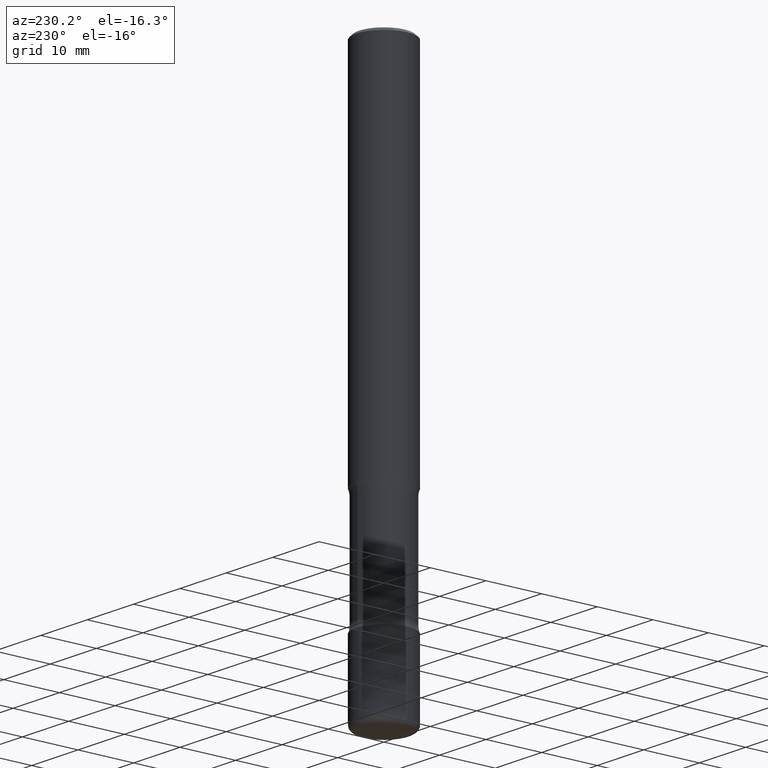
[diagram: clean part render]
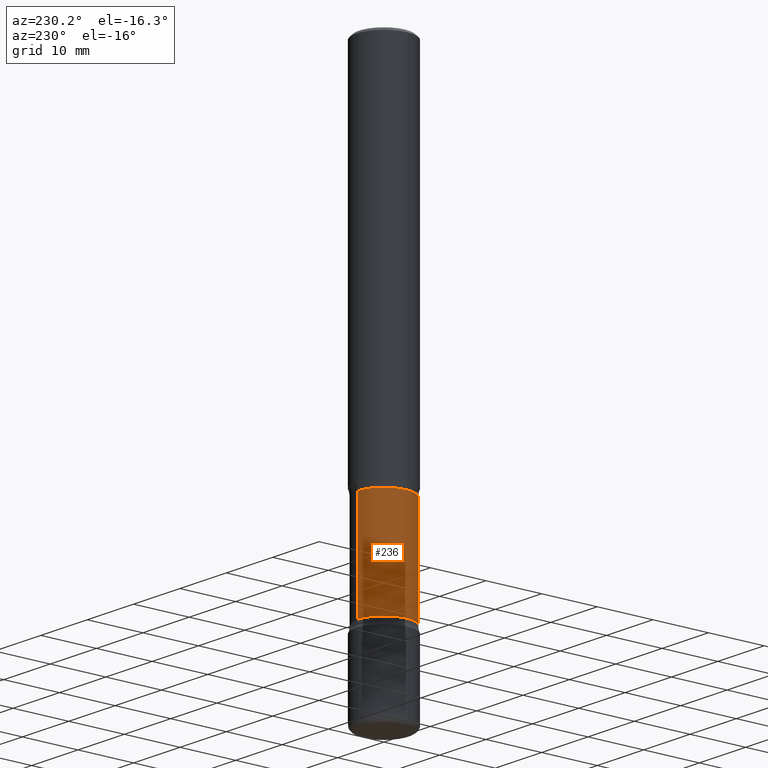
[diagram: same view with one face highlighted and labeled with its STEP entity id]
A machine part, auxiliary view. The second image highlights one B-rep face of the part: STEP entity #236.
In plain terms, the highlighted cylindrical surface (edge-blend (fillet) strip) has radius 4.7409 mm, axis along (0, -0, -1).
Its self-contained STEP definition (entity closure, byte-faithful):
#4 = VECTOR ( 'NONE', #336, 39.37007874015748143 ) ;
#34 = CARTESIAN_POINT ( 'NONE',  ( -1.315500491072630234E-15, -0.1866500000000093362, -2.608456647682591889 ) ) ;
#36 = EDGE_LOOP ( 'NONE', ( #427, #380, #44, #461 ) ) ;
#39 = AXIS2_PLACEMENT_3D ( 'NONE', #82, #554, #176 ) ;
#44 = ORIENTED_EDGE ( 'NONE', *, *, #500, .T. ) ;
#62 = DIRECTION ( 'NONE',  ( 6.982962677686266711E-15, 1.000000000000000000, -2.927241354046892699E-15 ) ) ;
#82 = CARTESIAN_POINT ( 'NONE',  ( 8.151697017269320442E-29, -1.165912942494680306E-14, -3.336343352317407973 ) ) ;
#136 = CARTESIAN_POINT ( 'NONE',  ( 1.303369983790204808E-15, 0.1866499999999908233, -2.608456647682592777 ) ) ;
#171 = CARTESIAN_POINT ( 'NONE',  ( 1.303369983790238926E-15, 0.1866499999999864101, -3.937000000000000721 ) ) ;
#176 = DIRECTION ( 'NONE',  ( 6.982962677686266711E-15, 1.000000000000000000, -2.927241354046893093E-15 ) ) ;
#178 = CARTESIAN_POINT ( 'NONE',  ( 1.303369983790223149E-15, 0.1866499999999883530, -3.336343352317408861 ) ) ;
#182 = VERTEX_POINT ( 'NONE', #178 ) ;
#200 = CARTESIAN_POINT ( 'NONE',  ( -1.315500491072608935E-15, -0.1866500000000116399, -3.336343352317407529 ) ) ;
#221 = VECTOR ( 'NONE', #558, 39.37007874015748143 ) ;
#229 = CYLINDRICAL_SURFACE ( 'NONE', #254, 0.1866500000000000381 ) ;
#236 = ADVANCED_FACE ( 'NONE', ( #270 ), #229, .T. ) ;
#254 = AXIS2_PLACEMENT_3D ( 'NONE', #475, #362, #62 ) ;
#268 = EDGE_CURVE ( 'NONE', #507, #543, #473, .T. ) ;
#270 = FACE_OUTER_BOUND ( 'NONE', #36, .T. ) ;
#289 = AXIS2_PLACEMENT_3D ( 'NONE', #443, #408, #290 ) ;
#290 = DIRECTION ( 'NONE',  ( 6.982962677686266711E-15, 1.000000000000000000, -2.927241354046892304E-15 ) ) ;
#326 = CARTESIAN_POINT ( 'NONE',  ( -1.280511951283959495E-15, -0.1866500000000136661, -3.936999999999999389 ) ) ;
#336 = DIRECTION ( 'NONE',  ( 2.591588243807108620E-29, -3.282229987566573640E-15, -1.000000000000000000 ) ) ;
#362 = DIRECTION ( 'NONE',  ( 2.591588243807108620E-29, -3.282229987566573640E-15, -1.000000000000000000 ) ) ;
#363 = CIRCLE ( 'NONE', #39, 0.1866500000000000103 ) ;
#368 = LINE ( 'NONE', #326, #221 ) ;
#380 = ORIENTED_EDGE ( 'NONE', *, *, #268, .T. ) ;
#408 = DIRECTION ( 'NONE',  ( 2.591588243807108620E-29, -3.282229987566573640E-15, -1.000000000000000000 ) ) ;
#423 = LINE ( 'NONE', #171, #4 ) ;
#427 = ORIENTED_EDGE ( 'NONE', *, *, #463, .F. ) ;
#443 = CARTESIAN_POINT ( 'NONE',  ( 6.265314390714234203E-29, -9.270037855443396476E-15, -2.608456647682592333 ) ) ;
#456 = VERTEX_POINT ( 'NONE', #200 ) ;
#461 = ORIENTED_EDGE ( 'NONE', *, *, #540, .F. ) ;
#463 = EDGE_CURVE ( 'NONE', #507, #456, #368, .T. ) ;
#473 = CIRCLE ( 'NONE', #289, 0.1866500000000000659 ) ;
#475 = CARTESIAN_POINT ( 'NONE',  ( 9.708351723968114409E-29, -1.363062268620181866E-14, -3.937000000000000277 ) ) ;
#500 = EDGE_CURVE ( 'NONE', #543, #182, #423, .T. ) ;
#507 = VERTEX_POINT ( 'NONE', #34 ) ;
#540 = EDGE_CURVE ( 'NONE', #456, #182, #363, .T. ) ;
#543 = VERTEX_POINT ( 'NONE', #136 ) ;
#554 = DIRECTION ( 'NONE',  ( 2.591588243807108620E-29, -3.282229987566573640E-15, -1.000000000000000000 ) ) ;
#558 = DIRECTION ( 'NONE',  ( 2.591588243807108620E-29, -3.282229987566573640E-15, -1.000000000000000000 ) ) ;